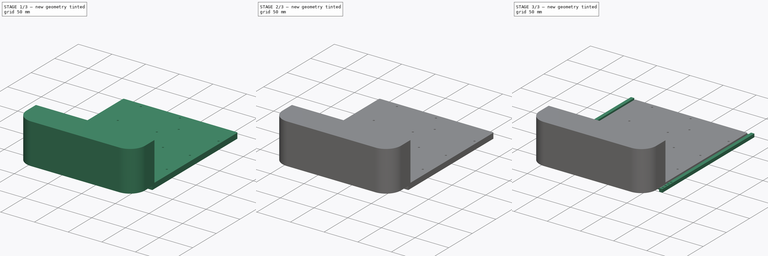
[diagram: build sequence overview — one tinted view per stage of 3, left to right]
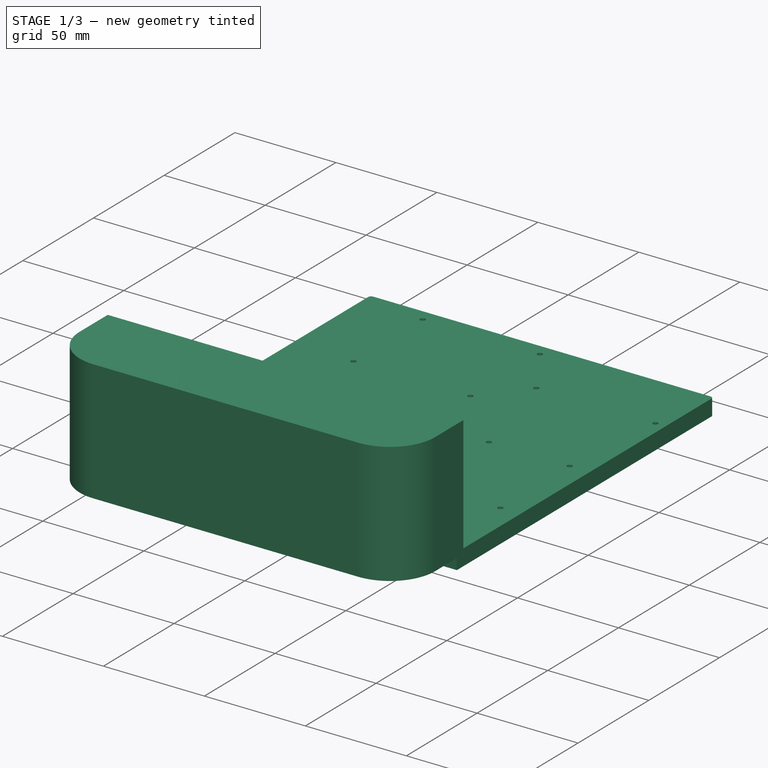
[diagram: stage 1 of 3 — iso view after this stage's code; geometry added in this stage tinted green]
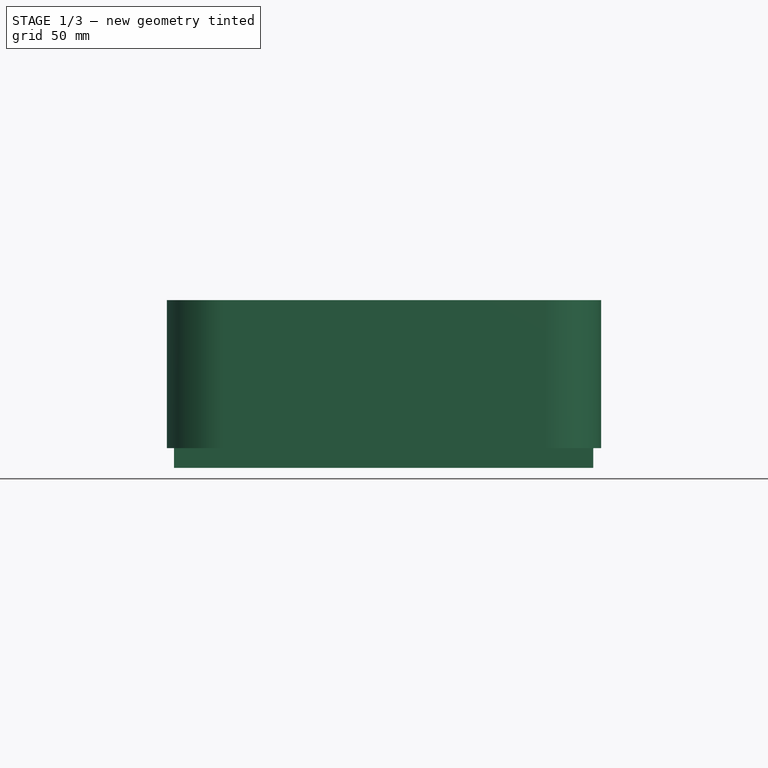
[diagram: stage 1 of 3 — front view after this stage's code; geometry added in this stage tinted green]
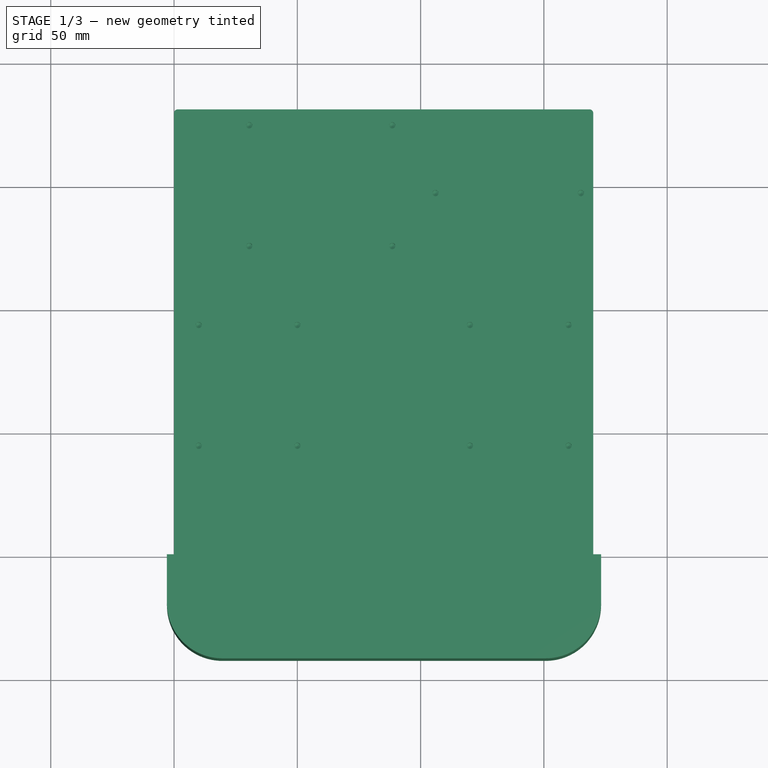
[diagram: stage 1 of 3 — top view after this stage's code; geometry added in this stage tinted green]
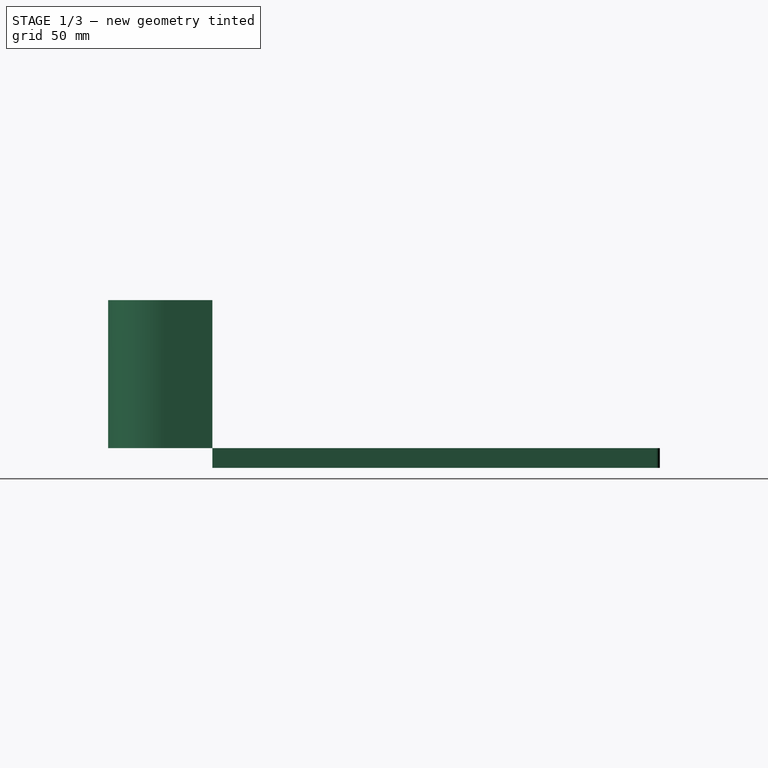
[diagram: stage 1 of 3 — right view after this stage's code; geometry added in this stage tinted green]
FCSTD DOCUMENT  (FreeCAD 0.21R33771 (Git))
Label: rr_baseplate
License: All rights reserved
LicenseURL: http://en.wikipedia.org/wiki/All_rights_reserved
objects: Sketcher::SketchObject×8, PartDesign::Pad×5, PartDesign::Hole×3, PartDesign::Body×2, Spreadsheet::Sheet×1
note: 26 computed .brp shape members not serialized (recipe doc carries the construction recipe); baked Part::Feature solids carry a one-line shape summary decoded from their .brp

FEATURE [Sketcher::SketchObject] Sketch  label="floor001"
  FullyConstrained = true
  MapMode = 5
  Support = -> [XY_Plane]
  expr: .Constraints.base_x = Spreadsheet.base_x
  expr: .Constraints.base_y = Spreadsheet.base_y
  expr: .Constraints.edge_fillet = Spreadsheet.std_edge_diam
  sketch-geometry (6):
    g0: LineSegment StartX=0 StartY=0 StartZ=0 EndX=170 EndY=0 EndZ=0
    g1: LineSegment StartX=170 StartY=0 StartZ=0 EndX=170 EndY=180 EndZ=0
    g2: LineSegment StartX=168.5 StartY=181.5 StartZ=0 EndX=1.5 EndY=181.5 EndZ=0
    g3: LineSegment StartX=0 StartY=180 StartZ=0 EndX=0 EndY=0 EndZ=0
    g4: ArcOfCircle CenterX=1.5 CenterY=180 CenterZ=0 NormalX=0 NormalY=0 NormalZ=1 AngleXU=0 Radius=1.5 StartAngle=1.5708 EndAngle=3.14159
    g5: ArcOfCircle CenterX=168.5 CenterY=180 CenterZ=0 NormalX=0 NormalY=0 NormalZ=1 AngleXU=0 Radius=1.5 StartAngle=-1.066e-13 EndAngle=1.5708
  constraints (15):
    c: Coincident(g0,g1)
    c: Coincident(g3,g0)
    c: Horizontal(g0)
    c: Horizontal(g2)
    c: Vertical(g1)
    c: Vertical(g3)
    c: Coincident(g0,g-1)
    c: Tangent(g3,g4) = -1.5708
    c: Tangent(g2,g4) = -1.5708
    c: Tangent(g2,g5) = -1.5708
    c: Tangent(g1,g5) = -1.5708
    c: DistanceX(g0,g0) = 170  'base_x'
    c: Equal(g3,g1)
    c: DistanceY(g0,g3) = 180  'base_y'
    c: Diameter(g4) = 3  'edge_fillet'
FEATURE [Spreadsheet::Sheet] Spreadsheet  label="floor_ss"
  cells = A1='base_x; B1(base_x)=170; C1='const; A2='base_y; B2(base_y)=180; C2='const; A3='base_z; B3(base_z)=8; C3='const; A4='base_edge_offset; B4(base_edge_offset)=5; C4='const; A5='std_screw_z; B5(std_screw_z)=5; C5='const; A6='std_edge_diam; B6(std_edge_diam)=3; C6='const; A7='std_m3_diam; B7(std_m3_diam)=3; C7='const; A8='pi_total_len; B8(pi_total_len)=85; C8='const; A9='pi_screw_len_x; B9(pi_screw_len_x)=58; C9='const; A10='pi_screw_len_y; B10(pi_screw_len_y)=49; C10='const; A11='l298n_edge_offset; B11(l298n_edge_offset)=5; C11='const; A12='b18650_x; B12(b18650_x)==18 * 3 + 5; C12='const; A13='ultrasonic_z; B13(ultrasonic_z)=30; C13='const; A15='pi_offset; B15(pi_offset)==pi_total_len - pi_screw_len_x - std_m3_diam / 2; C15='calc; A16='l298n_screw_x; B16(l298n_screw_x)==45 - l298n_edge_offset; C16='calc; A17='l298n_screw_y; B17(l298n_screw_y)==54 - l298n_edge_offset; C17='calc; A18='b18650_y_offset; B18(b18650_y_offset)==base_y - 65 / 2; C18='calc; A19='camera_screw_x; B19(camera_screw_x)==25 - std_m3_diam; C19='calc; A20='camera_screw_z; B20(camera_screw_z)==14 - std_m3_diam / 2; C20='calc; A21='lug_width; B21(lug_width)==std_m3_diam * 2 + std_edge_diam; C21='calc; A22='lug_length; B22(lug_length)==std_m3_diam + 2; C22='calc; A23='lug_z; B23(lug_z)=3; C23='calc; A24='lug1_x; B24(lug1_x)=0; A25='lug2_x; B25(lug2_x)==lug_width + std_edge_diam; A26='lug3_x; B26(lug3_x)==base_x + std_m3_diam * 2 - lug_width; A27='lug4_x; B27(lug4_x)==lug3_x - (lug_width + std_edge_diam)
FEATURE [PartDesign::Pad] Pad  label="floor002"
  Direction = (0,0,1)
  Length = 8
  Length2 = 10
  Profile = -> Sketch
  ReferenceAxis = -> Sketch [N_Axis]
  Reversed = true
  Type = 0
  expr: Length = Spreadsheet.base_z
FEATURE [Sketcher::SketchObject] Sketch001  label="m3_screw_holes"
  FullyConstrained = true
  MapMode = 5
  Support = -> [XY_Plane]
  expr: .Constraints.battery_y = Spreadsheet.b18650_y_offset
  expr: .Constraints.l298_scerw_y_left = Spreadsheet.l298n_screw_y
  expr: .Constraints.l298_screw_hole = Spreadsheet.std_m3_diam
  expr: .Constraints.l298n_scerw_x_right = Spreadsheet.l298n_screw_x
  expr: .Constraints.l298n_screw_x_left = Spreadsheet.l298n_screw_x
  expr: .Constraints.pi_screw1 = Spreadsheet.std_m3_diam
  expr: .Constraints.pi_screw_offset = Spreadsheet.base_y - Spreadsheet.base_edge_offset
  expr: .Constraints.pi_screw_x = Spreadsheet.pi_screw_len_x
  expr: .Constraints.pi_screw_y = Spreadsheet.pi_screw_len_y
  expr: Constraints[11] = Spreadsheet.base_edge_offset + Spreadsheet.pi_offset
  expr: Constraints[20] = Spreadsheet.base_edge_offset + Spreadsheet.l298n_edge_offset
  expr: Constraints[21] = Spreadsheet.base_y * 0.25
  expr: Constraints[24] = Spreadsheet.std_m3_diam
  expr: Constraints[35] = Spreadsheet.base_x - (Spreadsheet.base_edge_offset + Spreadsheet.l298n_edge_offset)
  expr: Constraints[37] = Spreadsheet.std_m3_diam
  expr: Constraints[40] = Spreadsheet.b18650_x
  expr: Constraints[41] = Spreadsheet.base_x - Spreadsheet.base_edge_offset
  sketch-geometry (14):
    g0: Circle CenterX=30.5 CenterY=175 CenterZ=0 NormalX=0 NormalY=0 NormalZ=1 AngleXU=0 Radius=1.5
    g1: Circle CenterX=88.5 CenterY=175 CenterZ=0 NormalX=0 NormalY=0 NormalZ=1 AngleXU=0 Radius=1.5
    g2: Circle CenterX=30.5 CenterY=126 CenterZ=0 NormalX=0 NormalY=0 NormalZ=1 AngleXU=0 Radius=1.5
    g3: Circle CenterX=88.5 CenterY=126 CenterZ=0 NormalX=0 NormalY=0 NormalZ=1 AngleXU=0 Radius=1.5
    g4: Circle CenterX=10 CenterY=45 CenterZ=0 NormalX=0 NormalY=0 NormalZ=1 AngleXU=0 Radius=1.5
    g5: Circle CenterX=10 CenterY=94 CenterZ=0 NormalX=0 NormalY=0 NormalZ=1 AngleXU=0 Radius=1.5
    g6: Circle CenterX=50 CenterY=94 CenterZ=0 NormalX=0 NormalY=0 NormalZ=1 AngleXU=0 Radius=1.5
    g7: Circle CenterX=50 CenterY=45 CenterZ=0 NormalX=0 NormalY=0 NormalZ=1 AngleXU=0 Radius=1.5
    g8: Circle CenterX=120 CenterY=45 CenterZ=0 NormalX=0 NormalY=0 NormalZ=1 AngleXU=0 Radius=1.5
    g9: Circle CenterX=160 CenterY=45 CenterZ=0 NormalX=0 NormalY=0 NormalZ=1 AngleXU=0 Radius=1.5
    g10: Circle CenterX=120 CenterY=94 CenterZ=0 NormalX=0 NormalY=0 NormalZ=1 AngleXU=0 Radius=1.5
    g11: Circle CenterX=160 CenterY=94 CenterZ=0 NormalX=0 NormalY=0 NormalZ=1 AngleXU=0 Radius=1.5
    g12: Circle CenterX=106 CenterY=147.5 CenterZ=0 NormalX=0 NormalY=0 NormalZ=1 AngleXU=0 Radius=1.5
    g13: Circle CenterX=165 CenterY=147.5 CenterZ=0 NormalX=0 NormalY=0 NormalZ=1 AngleXU=0 Radius=1.5
  constraints (42):
    c: Diameter(g0) = 3  'pi_screw1'
    c: Equal(g0,g1)
    c: Equal(g1,g3)
    c: Equal(g3,g2)
    c: Vertical(g0,g2)
    c: Horizontal(g1,g0)
    c: Horizontal(g3,g2)
    c: Vertical(g3,g1)
    c: DistanceY(g-1,g0) = 175  'pi_screw_offset'
    c: DistanceY(g2,g0) = 49  'pi_screw_y'
    c: DistanceX(g0,g1) = 58  'pi_screw_x'
    c: DistanceX(g-1,g2) = 30.5
    c: Equal(g4,g7)
    c: Equal(g7,g6)
    c: Equal(g6,g5)
    c: Diameter(g5) = 3  'l298_screw_hole'
    c: Vertical(g5,g4)
    c: Horizontal(g6,g5)
    c: Vertical(g6,g7)
    c: Horizontal(g4,g7)
    c: DistanceX(g-1,g4) = 10
    c: DistanceY(g-1,g4) = 45
    c: DistanceX(g4,g7) = 40  'l298n_screw_x_left'
    c: DistanceY(g4,g5) = 49  'l298_scerw_y_left'
    c: Diameter(g9) = 3
    c: Equal(g9,g8)
    c: Equal(g8,g11)
    c: Equal(g11,g10)
    c: Horizontal(g7,g8)
    c: Horizontal(g8,g9)
    c: Horizontal(g6,g10)
    c: Vertical(g10,g8)
    c: Horizontal(g10,g11)
    c: Vertical(g9,g11)
    c: DistanceX(g8,g9) = 40  'l298n_scerw_x_right'
    c: DistanceX(g-1,g9) = 160
    c: Equal(g13,g12)
    c: Diameter(g13) = 3
    c: DistanceY(g-1,g13) = 147.5  'battery_y'
    c: Horizontal(g12,g13)
    c: DistanceX(g12,g13) = 59
    c: DistanceX(g-1,g13) = 165
FEATURE [PartDesign::Hole] Hole
  BaseFeature = -> Pad
  CustomThreadClearance = 0
  Depth = 5
  DepthType = 0
  Diameter = 2.5
  DrillForDepth = false
  DrillPoint = 1
  DrillPointAngle = 118
  HoleCutCountersinkAngle = 90
  HoleCutCustomValues = false
  HoleCutDepth = 0
  HoleCutDiameter = 6.1
  HoleCutType = 0
  ModelThread = false
  Profile = -> Sketch001
  Tapered = false
  TaperedAngle = 90
  ThreadClass = 0
  ThreadDepth = 5
  ThreadDepthType = 0
  ThreadDirection = 0
  ThreadFit = 0
  ThreadSize = 9
  ThreadType = 1
  Threaded = true
  UseCustomThreadClearance = false
FEATURE [PartDesign::Body] Body  label="floor"
  Group = -> [Sketch,Pad,Sketch001,Hole,Sketch002,Pad001,Sketch003,Hole001,Sketch004,Pad002,Sketch005,Pad003,Sketch006,Hole002]
  Origin = -> Origin
  Tip = -> Hole002
FEATURE [Sketcher::SketchObject] Sketch007
  FullyConstrained = true
  MapMode = 5
  Support = -> [XY_Plane001]
  sketch-geometry (6):
    g0: LineSegment StartX=-2.89 StartY=0 StartZ=0 EndX=173.19 EndY=0 EndZ=0
    g1: LineSegment StartX=173.19 StartY=0 StartZ=0 EndX=173.19 EndY=-19.74 EndZ=0
    g2: LineSegment StartX=150.69 StartY=-42.24 StartZ=0 EndX=19.61 EndY=-42.24 EndZ=0
    g3: LineSegment StartX=-2.89 StartY=-19.74 StartZ=0 EndX=-2.89 EndY=0 EndZ=0
    g4: ArcOfCircle CenterX=19.61 CenterY=-19.74 CenterZ=0 NormalX=0 NormalY=0 NormalZ=1 AngleXU=0 Radius=22.5 StartAngle=3.14159 EndAngle=4.71239
    g5: ArcOfCircle CenterX=150.69 CenterY=-19.74 CenterZ=0 NormalX=0 NormalY=0 NormalZ=1 AngleXU=0 Radius=22.5 StartAngle=4.71239 EndAngle=6.28319
  constraints (16):
    c: Coincident(g0,g1)
    c: Coincident(g3,g0)
    c: Horizontal(g0)
    c: Horizontal(g2)
    c: Vertical(g1)
    c: Vertical(g3)
    c: PointOnObject(g0,g-1)
    c: Tangent(g3,g4) = 1.5708
    c: Tangent(g2,g4) = 1.5708
    c: Tangent(g1,g5) = 1.5708
    c: Tangent(g2,g5) = 1.5708
    c: Horizontal(g1,g3)
    c: Diameter(g4) = 45
    c: DistanceX(g-1,g0) = 173.19
    c: DistanceX(g0,g0) = 176.08
    c: DistanceY(g2,g-1) = 42.24
FEATURE [PartDesign::Pad] Pad004
  Direction = (0,0,1)
  Length = 60
  Length2 = 10
  Profile = -> Sketch007
  ReferenceAxis = -> Sketch007 [N_Axis]
  Type = 0
FEATURE [PartDesign::Body] Body001  label="windscreen"
  Group = -> [Sketch007,Pad004]
  Origin = -> Origin001
  Tip = -> Pad004
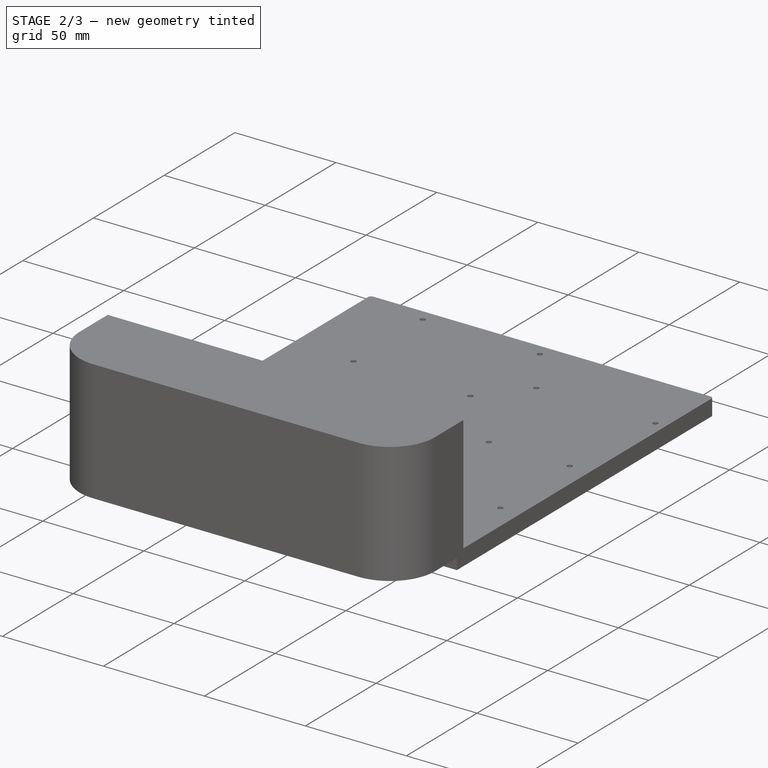
[diagram: stage 2 of 3 — iso view after this stage's code; geometry added in this stage tinted green]
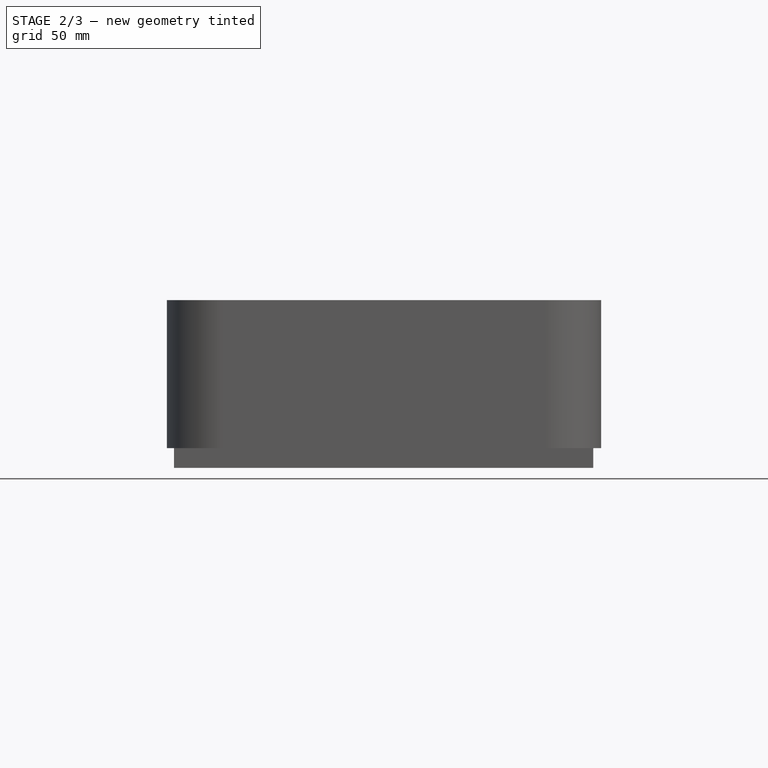
[diagram: stage 2 of 3 — front view after this stage's code; geometry added in this stage tinted green]
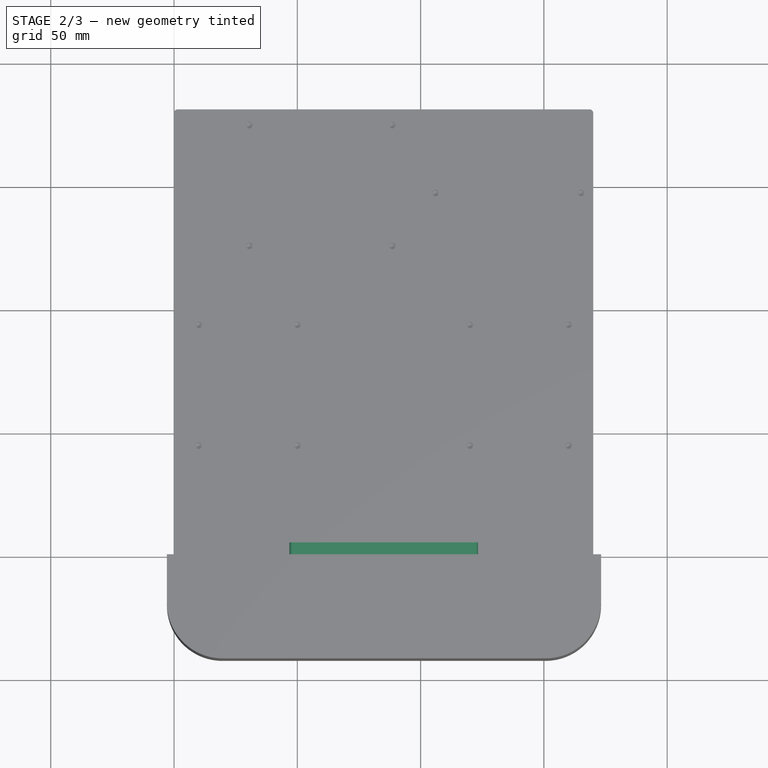
[diagram: stage 2 of 3 — top view after this stage's code; geometry added in this stage tinted green]
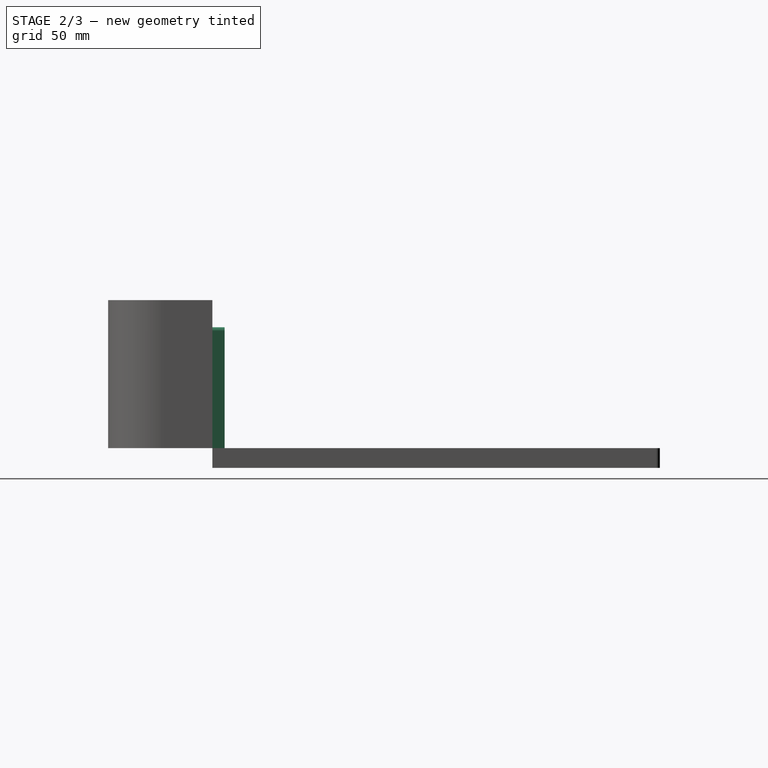
[diagram: stage 2 of 3 — right view after this stage's code; geometry added in this stage tinted green]
FEATURE [Sketcher::SketchObject] Sketch002  label="cam_mount"
  FullyConstrained = true
  MapMode = 5
  Placement = pos=(0,0,0) rot=(1,0,0;1.5708rad)
  Support = -> [XZ_Plane]
  expr: Constraints[13] = Spreadsheet.base_x * 0.45
  expr: Constraints[14] = Spreadsheet.base_x / 2 - Spreadsheet.base_x * 0.45 / 2
  expr: Constraints[15] = Spreadsheet.camera_screw_z + Spreadsheet.base_edge_offset + Spreadsheet.ultrasonic_z
  sketch-geometry (6):
    g0: LineSegment StartX=46.75 StartY=0 StartZ=0 EndX=123.25 EndY=0 EndZ=0
    g1: LineSegment StartX=123.25 StartY=0 StartZ=0 EndX=123.25 EndY=47.5 EndZ=0
    g2: LineSegment StartX=121.75 StartY=49 StartZ=0 EndX=48.25 EndY=49 EndZ=0
    g3: LineSegment StartX=46.75 StartY=47.5 StartZ=0 EndX=46.75 EndY=0 EndZ=0
    g4: ArcOfCircle CenterX=48.25 CenterY=47.5 CenterZ=0 NormalX=0 NormalY=0 NormalZ=1 AngleXU=0 Radius=1.5 StartAngle=1.5708 EndAngle=3.14159
    g5: ArcOfCircle CenterX=121.75 CenterY=47.5 CenterZ=0 NormalX=0 NormalY=0 NormalZ=1 AngleXU=0 Radius=1.5 StartAngle=-1.8e-15 EndAngle=1.5708
  constraints (16):
    c: Coincident(g0,g1)
    c: Coincident(g3,g0)
    c: Horizontal(g0)
    c: Horizontal(g2)
    c: Vertical(g1)
    c: Vertical(g3)
    c: PointOnObject(g0,g-1)
    c: Tangent(g3,g4) = -1.5708
    c: Tangent(g2,g4) = -1.5708
    c: Tangent(g2,g5) = -1.5708
    c: Tangent(g1,g5) = -1.5708
    c: Equal(g4,g5)
    c: Diameter(g4) = 3
    c: DistanceX(g0,g0) = 76.5
    c: DistanceX(g-1,g0) = 46.75
    c: DistanceY(g0,g3) = 47.5
FEATURE [PartDesign::Pad] Pad001  label="Camera_mount"
  BaseFeature = -> Hole
  Direction = (0,-1,-2e-16)
  Length = 5
  Length2 = 10
  Profile = -> Sketch002
  ReferenceAxis = -> Sketch002 [N_Axis]
  Reversed = true
  Type = 0
FEATURE [Sketcher::SketchObject] Sketch003  label="camera_screw_holes"
  FullyConstrained = true
  MapMode = 5
  Placement = pos=(0,0,0) rot=(1,0,0;1.5708rad)
  Support = -> [XZ_Plane]
  expr: Constraints[0] = Spreadsheet.std_m3_diam
  expr: Constraints[10] = Spreadsheet.camera_screw_z
  expr: Constraints[11] = Spreadsheet.std_edge_diam + Spreadsheet.ultrasonic_z
  expr: Constraints[8] = Spreadsheet.base_x / 2 - Spreadsheet.camera_screw_x / 2
  expr: Constraints[9] = Spreadsheet.camera_screw_x
  sketch-geometry (4):
    g0: Circle CenterX=74 CenterY=33 CenterZ=0 NormalX=0 NormalY=0 NormalZ=1 AngleXU=0 Radius=1.5
    g1: Circle CenterX=96 CenterY=33 CenterZ=0 NormalX=0 NormalY=0 NormalZ=1 AngleXU=0 Radius=1.5
    g2: Circle CenterX=74 CenterY=45.5 CenterZ=0 NormalX=0 NormalY=0 NormalZ=1 AngleXU=0 Radius=1.5
    g3: Circle CenterX=96 CenterY=45.5 CenterZ=0 NormalX=0 NormalY=0 NormalZ=1 AngleXU=0 Radius=1.5
  constraints (12):
    c: Diameter(g0) = 3
    c: Equal(g0,g2)
    c: Equal(g2,g3)
    c: Equal(g3,g1)
    c: Horizontal(g0,g1)
    c: Vertical(g0,g2)
    c: Vertical(g1,g3)
    c: Horizontal(g2,g3)
    c: DistanceX(g-1,g0) = 74
    c: DistanceX(g0,g1) = 22
    c: DistanceY(g1,g3) = 12.5
    c: DistanceY(g-1,g0) = 33
FEATURE [PartDesign::Hole] Hole001  label="Camera_mount_screwholes"
  BaseFeature = -> Pad001
  CustomThreadClearance = 0
  Depth = 505.288
  DepthType = 1
  Diameter = 3
  DrillForDepth = false
  DrillPoint = 1
  DrillPointAngle = 118
  HoleCutCountersinkAngle = 90
  HoleCutCustomValues = false
  HoleCutDepth = 0
  HoleCutDiameter = 6.1
  HoleCutType = 0
  ModelThread = false
  Profile = -> Sketch003
  Tapered = false
  TaperedAngle = 90
  ThreadClass = 0
  ThreadDepth = 505.288
  ThreadDepthType = 0
  ThreadDirection = 0
  ThreadFit = 0
  ThreadSize = 0
  ThreadType = 0
  Threaded = false
  UseCustomThreadClearance = false
  expr: Diameter = Spreadsheet.std_m3_diam
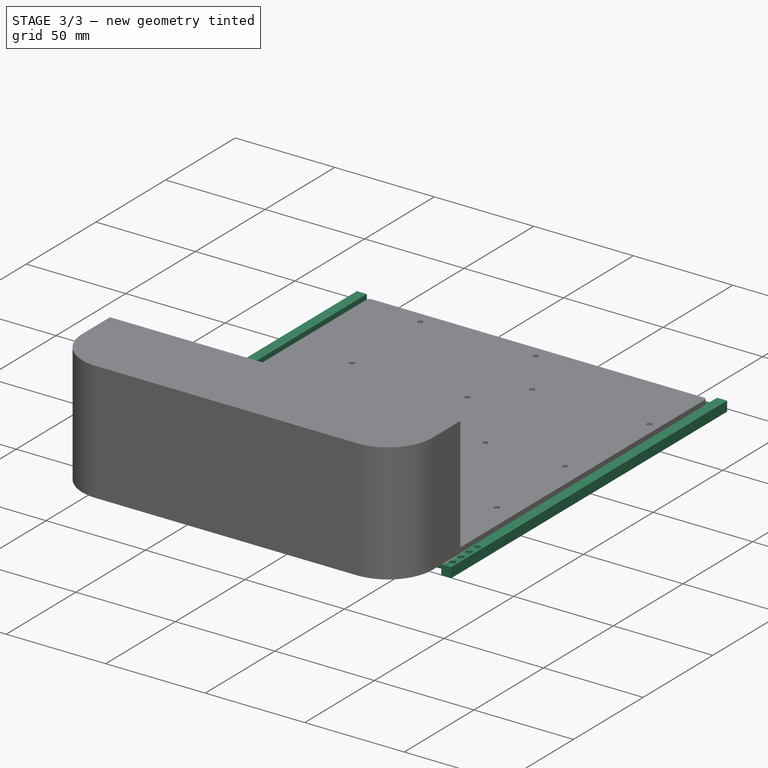
[diagram: stage 3 of 3 — iso view after this stage's code; geometry added in this stage tinted green]
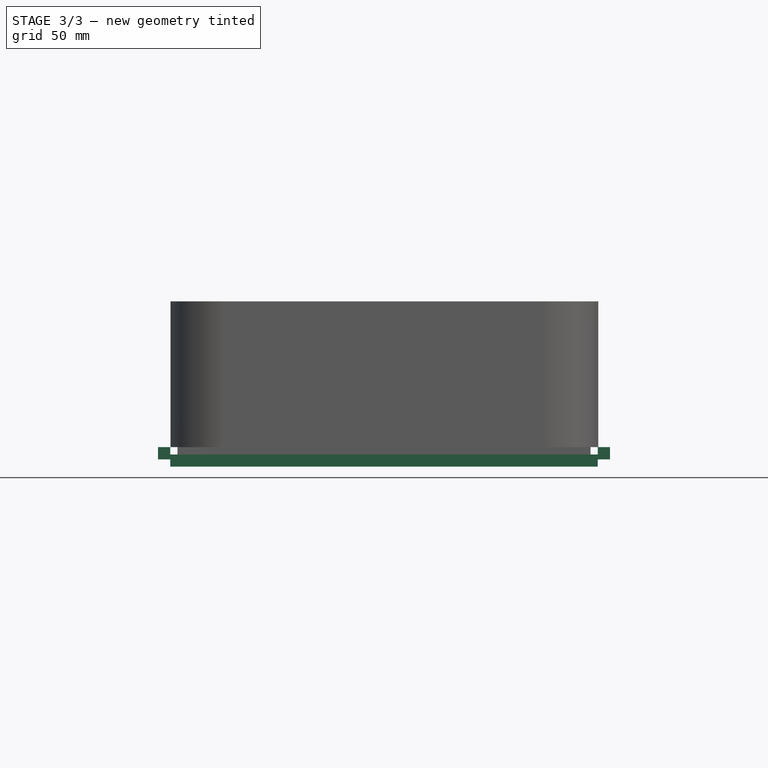
[diagram: stage 3 of 3 — front view after this stage's code; geometry added in this stage tinted green]
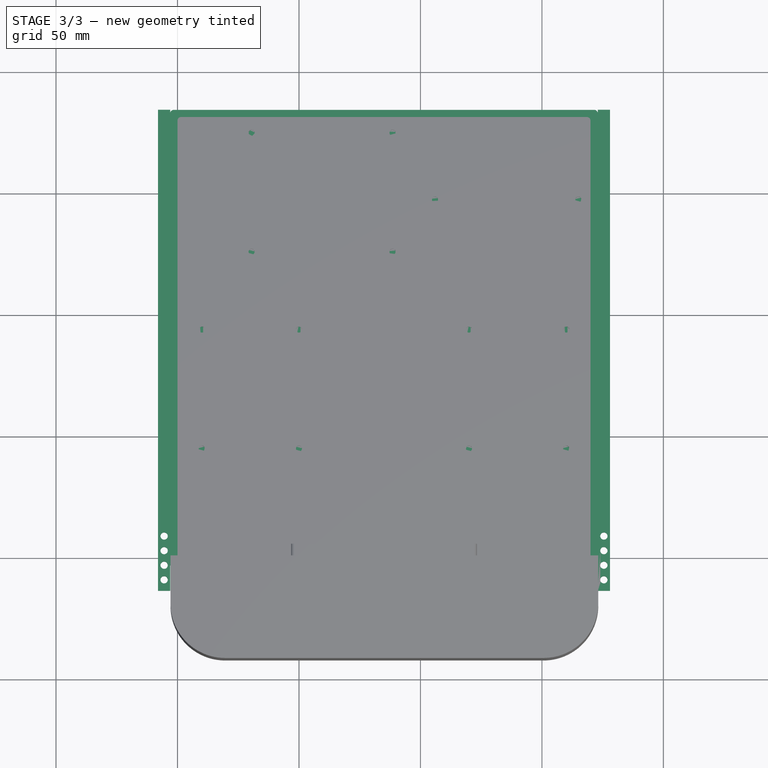
[diagram: stage 3 of 3 — top view after this stage's code; geometry added in this stage tinted green]
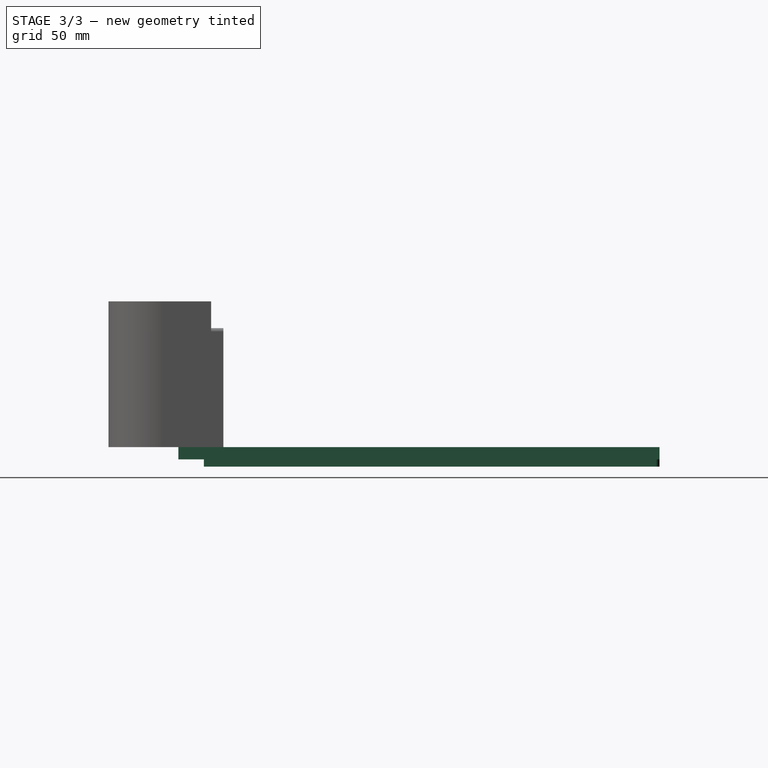
[diagram: stage 3 of 3 — right view after this stage's code; geometry added in this stage tinted green]
FEATURE [Sketcher::SketchObject] Sketch004  label="gutter"
  AttachmentOffset = pos=(0,0,-3) rot=(0,0,1;0rad)
  FullyConstrained = true
  MapMode = 5
  Placement = pos=(0,0,-3) rot=(0,0,1;0rad)
  Support = -> [XY_Plane]
  expr: Constraints[10] = Spreadsheet.std_edge_diam
  expr: Constraints[12] = Spreadsheet.std_edge_diam
  expr: Constraints[13] = Spreadsheet.std_edge_diam
  expr: Constraints[14] = Spreadsheet.base_y + Spreadsheet.std_edge_diam * 2
  expr: Constraints[15] = Spreadsheet.base_x + Spreadsheet.std_edge_diam * 2
  sketch-geometry (6):
    g0: LineSegment StartX=-1.5 StartY=184.5 StartZ=0 EndX=171.5 EndY=184.5 EndZ=0
    g1: LineSegment StartX=173 StartY=183 StartZ=0 EndX=173 EndY=-3 EndZ=0
    g2: LineSegment StartX=173 StartY=-3 StartZ=0 EndX=-3 EndY=-3 EndZ=0
    g3: LineSegment StartX=-3 StartY=-3 StartZ=0 EndX=-3 EndY=183 EndZ=0
    g4: ArcOfCircle CenterX=-1.5 CenterY=183 CenterZ=0 NormalX=0 NormalY=0 NormalZ=1 AngleXU=0 Radius=1.5 StartAngle=1.5708 EndAngle=3.14159
    g5: ArcOfCircle CenterX=171.5 CenterY=183 CenterZ=0 NormalX=0 NormalY=0 NormalZ=1 AngleXU=0 Radius=1.5 StartAngle=-4.4e-15 EndAngle=1.5708
  constraints (16):
    c: Coincident(g1,g2)
    c: Coincident(g2,g3)
    c: Horizontal(g0)
    c: Horizontal(g2)
    c: Vertical(g1)
    c: Vertical(g3)
    c: Tangent(g3,g4) = 1.5708
    c: Tangent(g0,g4) = 1.5708
    c: Tangent(g0,g5) = 1.5708
    c: Tangent(g1,g5) = 1.5708
    c: Diameter(g4) = 3
    c: Equal(g4,g5)
    c: DistanceX(g2,g-1) = 3
    c: DistanceY(g2,g-1) = 3
    c: DistanceY(g2,g3) = 186
    c: DistanceX(g2,g1) = 176
FEATURE [PartDesign::Pad] Pad002  label="gutter001"
  BaseFeature = -> Hole001
  Direction = (0,0,1)
  Length = 5
  Length2 = 10
  Profile = -> Sketch004
  ReferenceAxis = -> Sketch004 [N_Axis]
  Reversed = true
  Type = 0
  expr: Length = Spreadsheet.base_z - Spreadsheet.std_edge_diam
FEATURE [Sketcher::SketchObject] Sketch005  label="windscreen_mount"
  FullyConstrained = true
  MapMode = 5
  Support = -> [XY_Plane]
  expr: Constraints[16] = Spreadsheet.base_y + Spreadsheet.lug_width * 2
  expr: Constraints[17] = Spreadsheet.base_y + Spreadsheet.lug_width / 2
  expr: Constraints[18] = Spreadsheet.lug_length
  expr: Constraints[19] = Spreadsheet.lug_length
  expr: Constraints[22] = Spreadsheet.std_edge_diam
  expr: Constraints[23] = Spreadsheet.base_x + Spreadsheet.std_edge_diam
  sketch-geometry (8):
    g0: LineSegment StartX=-3 StartY=-13.5 StartZ=0 EndX=-8 EndY=-13.5 EndZ=0
    g1: LineSegment StartX=-8 StartY=-13.5 StartZ=0 EndX=-8 EndY=184.5 EndZ=0
    g2: LineSegment StartX=-8 StartY=184.5 StartZ=0 EndX=-3 EndY=184.5 EndZ=0
    g3: LineSegment StartX=-3 StartY=184.5 StartZ=0 EndX=-3 EndY=-13.5 EndZ=0
    g4: LineSegment StartX=173 StartY=184.5 StartZ=0 EndX=178 EndY=184.5 EndZ=0
    g5: LineSegment StartX=178 StartY=184.5 StartZ=0 EndX=178 EndY=-13.5 EndZ=0
    g6: LineSegment StartX=178 StartY=-13.5 StartZ=0 EndX=173 EndY=-13.5 EndZ=0
    g7: LineSegment StartX=173 StartY=-13.5 StartZ=0 EndX=173 EndY=184.5 EndZ=0
  constraints (24):
    c: Coincident(g0,g1)
    c: Coincident(g1,g2)
    c: Coincident(g2,g3)
    c: Coincident(g3,g0)
    c: Horizontal(g0)
    c: Horizontal(g2)
    c: Vertical(g1)
    c: Vertical(g3)
    c: Coincident(g4,g5)
    c: Coincident(g5,g6)
    c: Coincident(g6,g7)
    c: Coincident(g7,g4)
    c: Horizontal(g4)
    c: Horizontal(g6)
    c: Horizontal(g0,g6)
    c: Horizontal(g2,g4)
    c: DistanceY(g0,g1) = 198
    c: DistanceY(g-1,g2) = 184.5
    c: DistanceX(g0,g0) = 5
    c: DistanceX(g6,g5) = 5
    c: Vertical(g4,g6)
    c: Vertical(g4,g5)
    c: DistanceX(g0,g-1) = 3
    c: DistanceX(g-1,g6) = 173
FEATURE [PartDesign::Pad] Pad003  label="windscreen_mount001"
  BaseFeature = -> Pad002
  Direction = (0,0,1)
  Length = 5
  Length2 = 10
  Profile = -> Sketch005
  ReferenceAxis = -> Sketch005 [N_Axis]
  Reversed = true
  Type = 0
  expr: Length = Spreadsheet.std_screw_z
FEATURE [Sketcher::SketchObject] Sketch006  label="windscreen_scew_mnts"
  FullyConstrained = true
  MapMode = 5
  Support = -> [XY_Plane]
  expr: Constraints[0] = Spreadsheet.std_m3_diam
  expr: Constraints[12] = Spreadsheet.lug_width
  expr: Constraints[13] = Spreadsheet.lug_length / 2 + Spreadsheet.std_edge_diam
  expr: Constraints[14] = Spreadsheet.base_x + Spreadsheet.std_edge_diam + Spreadsheet.lug_length / 2
  expr: Constraints[7] = Spreadsheet.std_m3_diam * 2
  expr: Constraints[8] = Spreadsheet.std_m3_diam * 2
  expr: Constraints[9] = Spreadsheet.std_m3_diam * 2
  sketch-geometry (8):
    g0: Circle CenterX=-5.5 CenterY=-9 CenterZ=0 NormalX=0 NormalY=0 NormalZ=1 AngleXU=0 Radius=1.5
    g1: Circle CenterX=-5.5 CenterY=9 CenterZ=0 NormalX=0 NormalY=0 NormalZ=1 AngleXU=0 Radius=1.5
    g2: Circle CenterX=-5.5 CenterY=3 CenterZ=0 NormalX=0 NormalY=0 NormalZ=1 AngleXU=0 Radius=1.5
    g3: Circle CenterX=-5.5 CenterY=-3 CenterZ=0 NormalX=0 NormalY=0 NormalZ=1 AngleXU=0 Radius=1.5
    g4: Circle CenterX=175.5 CenterY=-9 CenterZ=0 NormalX=0 NormalY=0 NormalZ=1 AngleXU=0 Radius=1.5
    g5: Circle CenterX=175.5 CenterY=-3 CenterZ=0 NormalX=0 NormalY=0 NormalZ=1 AngleXU=0 Radius=1.5
    g6: Circle CenterX=175.5 CenterY=3 CenterZ=0 NormalX=0 NormalY=0 NormalZ=1 AngleXU=0 Radius=1.5
    g7: Circle CenterX=175.5 CenterY=9 CenterZ=0 NormalX=0 NormalY=0 NormalZ=1 AngleXU=0 Radius=1.5
  constraints (24):
    c: Diameter(g0) = 3
    c: Equal(g0,g3)
    c: Equal(g3,g2)
    c: Equal(g2,g1)
    c: Vertical(g0,g3)
    c: Vertical(g3,g2)
    c: Vertical(g2,g1)
    c: DistanceY(g0,g3) = 6
    c: DistanceY(g3,g2) = 6
    c: DistanceY(g2,g1) = 6
    c: Equal(g4,g0)
    c: Horizontal(g4,g0)
    c: DistanceY(g0,g-1) = 9
    c: DistanceX(g0,g-1) = 5.5
    c: DistanceX(g-1,g4) = 175.5
    c: Equal(g4,g5)
    c: Equal(g5,g6)
    c: Equal(g6,g7)
    c: Vertical(g4,g5)
    c: Vertical(g5,g6)
    c: Vertical(g6,g7)
    c: Horizontal(g5,g3)
    c: Horizontal(g6,g2)
    c: Horizontal(g7,g1)
FEATURE [PartDesign::Hole] Hole002
  BaseFeature = -> Pad003
  CustomThreadClearance = 0
  Depth = 560.706
  DepthType = 1
  Diameter = 3
  DrillForDepth = false
  DrillPoint = 1
  DrillPointAngle = 118
  HoleCutCountersinkAngle = 90
  HoleCutCustomValues = false
  HoleCutDepth = 0
  HoleCutDiameter = 6.1
  HoleCutType = 0
  ModelThread = false
  Profile = -> Sketch006
  Tapered = false
  TaperedAngle = 90
  ThreadClass = 0
  ThreadDepth = 560.706
  ThreadDepthType = 0
  ThreadDirection = 0
  ThreadFit = 0
  ThreadSize = 0
  ThreadType = 0
  Threaded = false
  UseCustomThreadClearance = false
  expr: Diameter = Spreadsheet.std_m3_diam
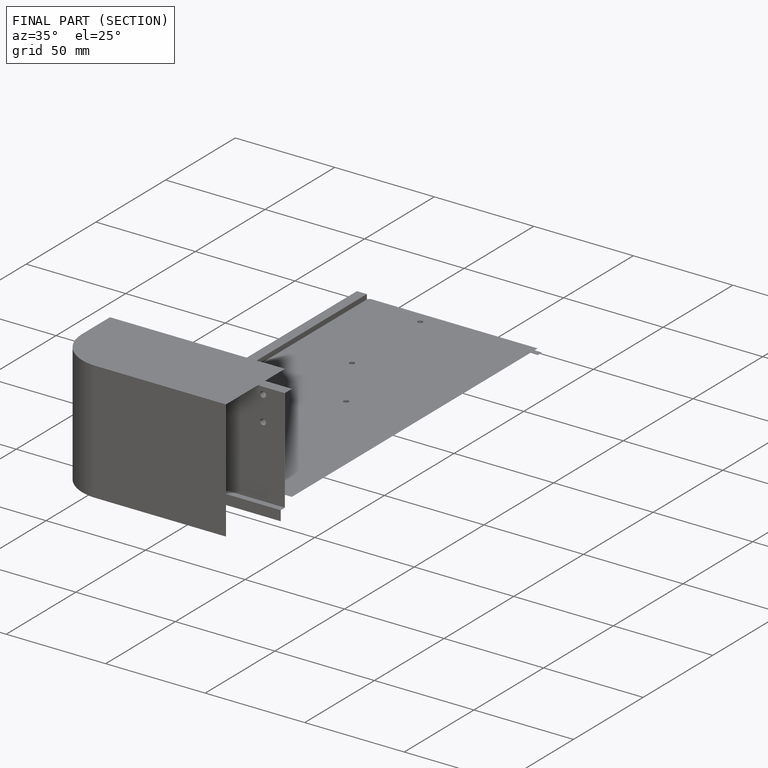
[diagram: finished part — half-section view (interior)]
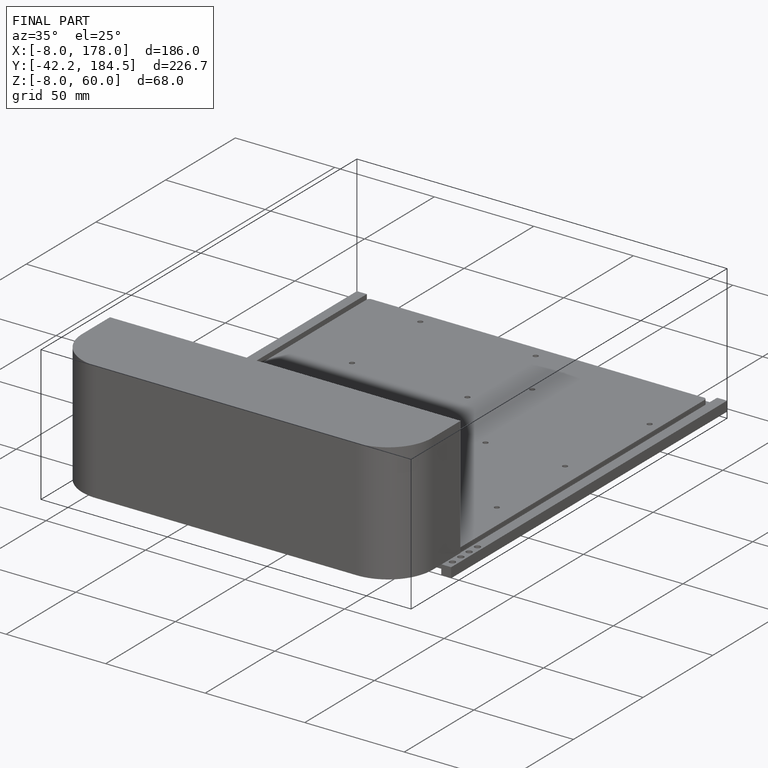
[diagram: finished part — iso view with bounding-box wireframe]
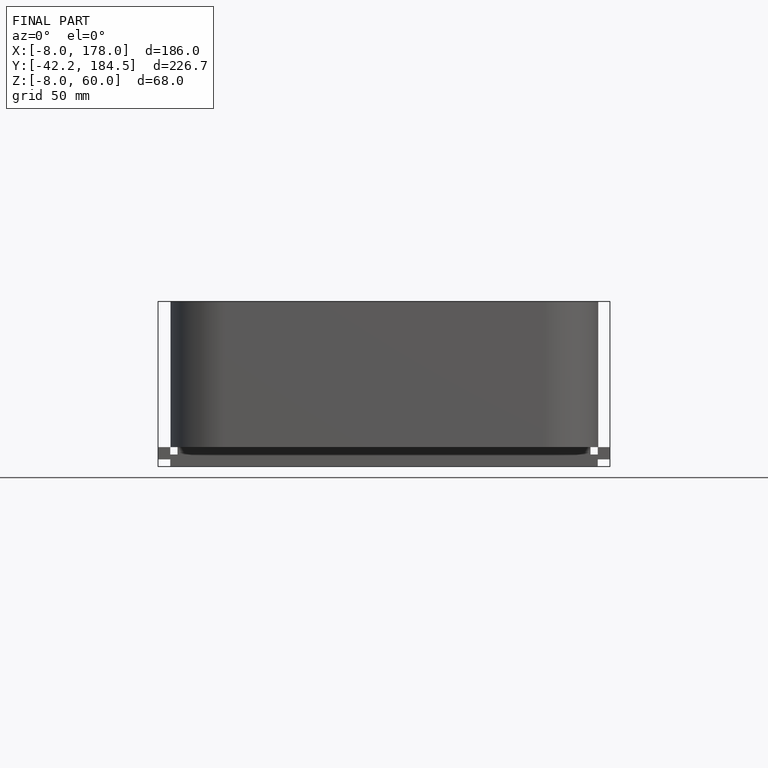
[diagram: finished part — front view with bounding-box wireframe]
